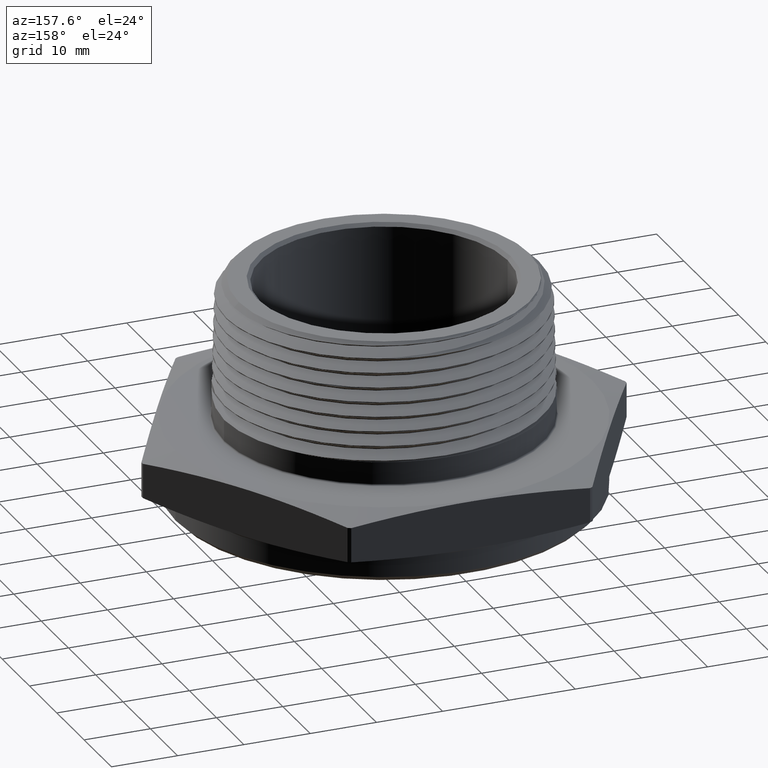
[diagram: clean part render]
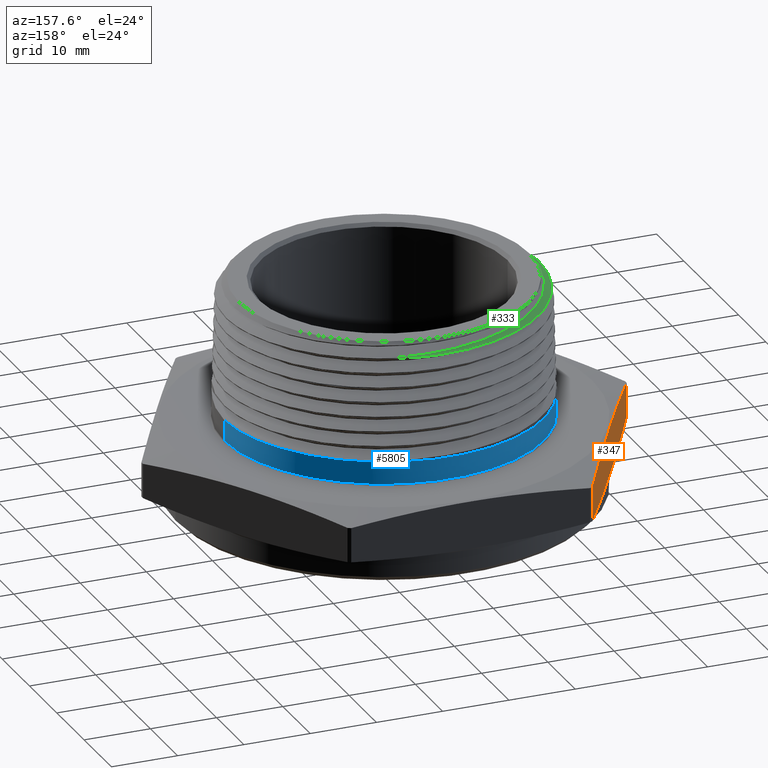
[diagram: same view with three faces highlighted in distinct colors, each labeled with its STEP entity id]
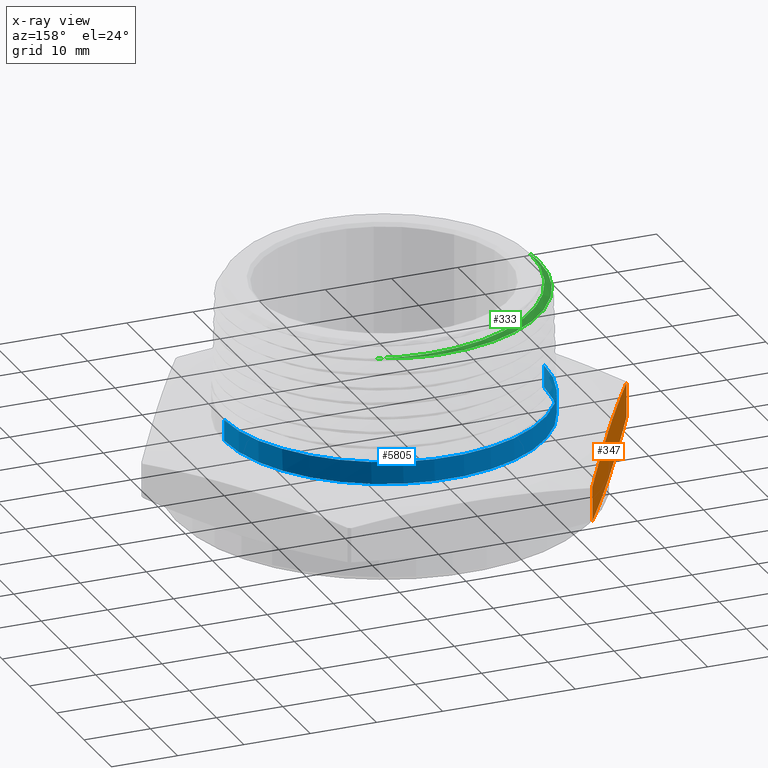
[diagram: x-ray of the same camera — body ghosted, the three highlighted faces saturated]
A machine part, auxiliary view with three faces highlighted in distinct colors.
The next image is the same camera in x-ray (body ghosted, the three faces saturated) — at least one of them is partly hidden behind the body in this view.
Their STEP definitions:

[orange] entity #347 — the highlighted planar face has unit normal (0.866, -0.5, 0).
#92 = EDGE_CURVE ( 'NONE', #686, #617, #7368, .T. ) ;
#174 = EDGE_CURVE ( 'NONE', #624, #622, #7398, .T. ) ;
#189 = EDGE_CURVE ( 'NONE', #617, #624, #424, .T. ) ;
#222 = EDGE_CURVE ( 'NONE', #622, #686, #449, .T. ) ;
#311 = AXIS2_PLACEMENT_3D ( 'NONE', #5261, #5265, #5266 ) ;
#347 = ADVANCED_FACE ( 'NONE', ( #524 ), #5263, .F. ) ;
#424 = LINE ( 'NONE', #3612, #426 ) ;
#426 = VECTOR ( 'NONE', #3613, 39.37007874015748100 ) ;
#449 = LINE ( 'NONE', #6458, #453 ) ;
#453 = VECTOR ( 'NONE', #6459, 39.37007874015748100 ) ;
#524 = FACE_OUTER_BOUND ( 'NONE', #5008, .T. ) ;
#617 = VERTEX_POINT ( 'NONE', #3508 ) ;
#622 = VERTEX_POINT ( 'NONE', #3512 ) ;
#624 = VERTEX_POINT ( 'NONE', #3513 ) ;
#686 = VERTEX_POINT ( 'NONE', #3574 ) ;
#3508 = CARTESIAN_POINT ( 'NONE',  ( -1.437337626038241800, 0.01045820407133122400, 0.04195349440467256700 ) ) ;
#3512 = CARTESIAN_POINT ( 'NONE',  ( -0.7277258834228548200, 1.239541795928669600, 0.2480465055953273400 ) ) ;
#3513 = CARTESIAN_POINT ( 'NONE',  ( -1.437337626038241800, 0.01045820407133122400, 0.2480465055953274000 ) ) ;
#3574 = CARTESIAN_POINT ( 'NONE',  ( -0.7277258834228547100, 1.239541795928669200, 0.04195349440467256700 ) ) ;
#3612 = CARTESIAN_POINT ( 'NONE',  ( -1.437337626038241600, 0.01045820407133122300, 4.452765956256800200E-017 ) ) ;
#3613 = DIRECTION ( 'NONE',  ( 1.254986547952384500E-016, 0.0000000000000000000, 1.000000000000000000 ) ) ;
#4763 = CARTESIAN_POINT ( 'NONE',  ( -1.319069002269010600, 0.2153054693808876300, 0.2705141470225283000 ) ) ;
#4764 = CARTESIAN_POINT ( 'NONE',  ( -1.378203314153626100, 0.1128818367261094600, 0.2604571565872934600 ) ) ;
#4833 = CARTESIAN_POINT ( 'NONE',  ( -1.437337626038241800, 0.01045820407133122400, 0.2480465055953274000 ) ) ;
#4834 = CARTESIAN_POINT ( 'NONE',  ( -1.200800378499779400, 0.4201527346904437900, 0.2842428284284243000 ) ) ;
#4835 = CARTESIAN_POINT ( 'NONE',  ( -1.082531754730547700, 0.6250000000000005600, 0.2915060403381749500 ) ) ;
#4836 = CARTESIAN_POINT ( 'NONE',  ( -0.9642631309613169900, 0.8298472653095566600, 0.2842428284284242400 ) ) ;
#4837 = CARTESIAN_POINT ( 'NONE',  ( -0.8459945071920862400, 1.034694530619113800, 0.2705141470225281800 ) ) ;
#4838 = CARTESIAN_POINT ( 'NONE',  ( -0.7868601953074708700, 1.137118163273891800, 0.2604571565872933500 ) ) ;
#4839 = CARTESIAN_POINT ( 'NONE',  ( -0.7277258834228548200, 1.239541795928669600, 0.2480465055953273400 ) ) ;
#4905 = ORIENTED_EDGE ( 'NONE', *, *, #92, .T. ) ;
#4906 = ORIENTED_EDGE ( 'NONE', *, *, #189, .T. ) ;
#4907 = ORIENTED_EDGE ( 'NONE', *, *, #174, .T. ) ;
#4908 = ORIENTED_EDGE ( 'NONE', *, *, #222, .T. ) ;
#5008 = EDGE_LOOP ( 'NONE', ( #4905, #4906, #4907, #4908 ) ) ;
#5261 = CARTESIAN_POINT ( 'NONE',  ( -0.7216878364870321600, 1.250000000000000000, 0.2899999999999999800 ) ) ;
#5263 = PLANE ( 'NONE',  #311 ) ;
#5265 = DIRECTION ( 'NONE',  ( 0.8660254037844386000, -0.5000000000000003300, 0.0000000000000000000 ) ) ;
#5266 = DIRECTION ( 'NONE',  ( 0.5000000000000002200, 0.8660254037844384900, 0.0000000000000000000 ) ) ;
#6458 = CARTESIAN_POINT ( 'NONE',  ( -0.7277258834228547100, 1.239541795928669200, -4.452765956256800200E-017 ) ) ;
#6459 = DIRECTION ( 'NONE',  ( -1.254986547952384500E-016, -0.0000000000000000000, -1.000000000000000000 ) ) ;
#7368 = B_SPLINE_CURVE_WITH_KNOTS ( 'NONE', 3,
 ( #7615, #7618, #7695, #7614, #7613, #7612, #7611, #7610, #7609 ),
 .UNSPECIFIED., .F., .F.,
 ( 4, 2, 1, 2, 4 ),
 ( 1.905845154215193700E-006, 0.009013974976369625000, 0.01802604410758503300, 0.02703811323880044400, 0.03605018237001584400 ),
 .UNSPECIFIED. ) ;
#7398 = B_SPLINE_CURVE_WITH_KNOTS ( 'NONE', 3,
 ( #4833, #4764, #4763, #4834, #4835, #4836, #4837, #4838, #4839 ),
 .UNSPECIFIED., .F., .F.,
 ( 4, 2, 1, 2, 4 ),
 ( 1.905845154219557400E-006, 0.009013974976369621600, 0.01802604410758503300, 0.02703811323880044000, 0.03605018237001585100 ),
 .UNSPECIFIED. ) ;
#7609 = CARTESIAN_POINT ( 'NONE',  ( -1.437337626038241800, 0.01045820407133122400, 0.04195349440467256700 ) ) ;
#7610 = CARTESIAN_POINT ( 'NONE',  ( -1.378203314153626700, 0.1128818367261093200, 0.02954284341270658000 ) ) ;
#7611 = CARTESIAN_POINT ( 'NONE',  ( -1.319069002269011000, 0.2153054693808875200, 0.01948585297747170200 ) ) ;
#7612 = CARTESIAN_POINT ( 'NONE',  ( -1.200800378499780300, 0.4201527346904441200, 0.005757171571575546600 ) ) ;
#7613 = CARTESIAN_POINT ( 'NONE',  ( -1.082531754730548400, 0.6250000000000005600, -0.001506040338175181200 ) ) ;
#7614 = CARTESIAN_POINT ( 'NONE',  ( -0.9642631309613175500, 0.8298472653095563300, 0.005757171571575505000 ) ) ;
#7615 = CARTESIAN_POINT ( 'NONE',  ( -0.7277258834228547100, 1.239541795928669200, 0.04195349440467256700 ) ) ;
#7618 = CARTESIAN_POINT ( 'NONE',  ( -0.7868601953074706400, 1.137118163273891100, 0.02954284341270648600 ) ) ;
#7695 = CARTESIAN_POINT ( 'NONE',  ( -0.8459945071920862400, 1.034694530619112900, 0.01948585297747160900 ) ) ;

[blue] entity #5805 — the highlighted cylindrical surface (partial cylindrical patch) has radius 24.13 mm, axis along (-0, -0, -1).
#51 = AXIS2_PLACEMENT_3D ( 'NONE', #733, #734, #730 ) ;
#136 = EDGE_CURVE ( 'NONE', #608, #627, #5163, .T. ) ;
#161 = EDGE_CURVE ( 'NONE', #627, #682, #391, .T. ) ;
#162 = EDGE_CURVE ( 'NONE', #694, #682, #393, .T. ) ;
#163 = EDGE_CURVE ( 'NONE', #613, #694, #386, .T. ) ;
#169 = EDGE_CURVE ( 'NONE', #613, #608, #7396, .T. ) ;
#257 = AXIS2_PLACEMENT_3D ( 'NONE', #6847, #6848, #6849 ) ;
#260 = AXIS2_PLACEMENT_3D ( 'NONE', #4589, #4590, #4591 ) ;
#386 = LINE ( 'NONE', #4588, #396 ) ;
#391 = LINE ( 'NONE', #4584, #394 ) ;
#393 = CIRCLE ( 'NONE', #260, 0.9499999999999999600 ) ;
#394 = VECTOR ( 'NONE', #4585, 39.37007874015748100 ) ;
#396 = VECTOR ( 'NONE', #4576, 39.37007874015748100 ) ;
#559 = FACE_OUTER_BOUND ( 'NONE', #5012, .T. ) ;
#560 = CYLINDRICAL_SURFACE ( 'NONE', #51, 0.9499999999999999600 ) ;
#608 = VERTEX_POINT ( 'NONE', #3500 ) ;
#613 = VERTEX_POINT ( 'NONE', #3505 ) ;
#627 = VERTEX_POINT ( 'NONE', #3515 ) ;
#682 = VERTEX_POINT ( 'NONE', #3570 ) ;
#694 = VERTEX_POINT ( 'NONE', #3582 ) ;
#730 = DIRECTION ( 'NONE',  ( -1.000000000000000000, 0.0000000000000000000, 0.0000000000000000000 ) ) ;
#733 = CARTESIAN_POINT ( 'NONE',  ( 0.0000000000000000000, 0.0000000000000000000, 1.120000000000000100 ) ) ;
#734 = DIRECTION ( 'NONE',  ( -0.0000000000000000000, -0.0000000000000000000, -1.000000000000000000 ) ) ;
#3500 = CARTESIAN_POINT ( 'NONE',  ( 0.8103408575735795400, 0.4958303082173806700, 0.4322118300599313000 ) ) ;
#3505 = CARTESIAN_POINT ( 'NONE',  ( 0.9499999999999999600, 1.396097351027982000E-015, 0.4247256000610708000 ) ) ;
#3515 = CARTESIAN_POINT ( 'NONE',  ( -0.9499999999999999600, 0.0000000000000000000, 0.4322118300599065400 ) ) ;
#3570 = CARTESIAN_POINT ( 'NONE',  ( -0.9499999999999999600, 0.0000000000000000000, 0.2999999999999999300 ) ) ;
#3582 = CARTESIAN_POINT ( 'NONE',  ( 0.9499999999999999600, 1.163414459189985400E-016, 0.2999999999999999300 ) ) ;
#4576 = DIRECTION ( 'NONE',  ( -0.0000000000000000000, -0.0000000000000000000, -1.000000000000000000 ) ) ;
#4584 = CARTESIAN_POINT ( 'NONE',  ( -0.9499999999999999600, 0.0000000000000000000, 1.120000000000000100 ) ) ;
#4585 = DIRECTION ( 'NONE',  ( -0.0000000000000000000, -0.0000000000000000000, -1.000000000000000000 ) ) ;
#4588 = CARTESIAN_POINT ( 'NONE',  ( 0.9499999999999999600, 1.163414459189985400E-016, 1.120000000000000100 ) ) ;
#4589 = CARTESIAN_POINT ( 'NONE',  ( 0.0000000000000000000, 0.0000000000000000000, 0.2999999999999999300 ) ) ;
#4590 = DIRECTION ( 'NONE',  ( -0.0000000000000000000, 0.0000000000000000000, 1.000000000000000000 ) ) ;
#4591 = DIRECTION ( 'NONE',  ( 1.000000000000000000, 0.0000000000000000000, 0.0000000000000000000 ) ) ;
#4743 = CARTESIAN_POINT ( 'NONE',  ( 0.9499999999999998400, 0.04376044649142504100, 0.4253536803664314500 ) ) ;
#4745 = CARTESIAN_POINT ( 'NONE',  ( 0.9469906977881996600, 0.08726416962842077600, 0.4259752671625905400 ) ) ;
#4749 = CARTESIAN_POINT ( 'NONE',  ( 0.9499999999999999600, 1.396097351027982000E-015, 0.4247256000610708000 ) ) ;
#4750 = CARTESIAN_POINT ( 'NONE',  ( 0.9379930416243615900, 0.1521369715547751000, 0.4269172804552975900 ) ) ;
#4751 = CARTESIAN_POINT ( 'NONE',  ( 0.9342316562770640600, 0.1737374126753782300, 0.4272328627869794200 ) ) ;
#4752 = CARTESIAN_POINT ( 'NONE',  ( 0.9252972745385856800, 0.2163294475673309100, 0.4278567693194805800 ) ) ;
#4753 = CARTESIAN_POINT ( 'NONE',  ( 0.9201196890645995100, 0.2373750278955432400, 0.4281665073907365800 ) ) ;
#4754 = CARTESIAN_POINT ( 'NONE',  ( 0.9024983694014645500, 0.2997753784397215200, 0.4290960269641788700 ) ) ;
#4755 = CARTESIAN_POINT ( 'NONE',  ( 0.8879755952850391100, 0.3403970977156611200, 0.4297173064405072100 ) ) ;
#4756 = CARTESIAN_POINT ( 'NONE',  ( 0.8620210226929075900, 0.3998593089128226800, 0.4306468554580703500 ) ) ;
#4757 = CARTESIAN_POINT ( 'NONE',  ( 0.8526720590465005600, 0.4194341386096995300, 0.4309569746216282400 ) ) ;
#4758 = CARTESIAN_POINT ( 'NONE',  ( 0.8325481777062421200, 0.4580809630489738900, 0.4315819216731792100 ) ) ;
#4759 = CARTESIAN_POINT ( 'NONE',  ( 0.8217607232632152500, 0.4771666976976877100, 0.4318970241964945100 ) ) ;
#4760 = CARTESIAN_POINT ( 'NONE',  ( 0.8103408575735795400, 0.4958303082173806700, 0.4322118300599313000 ) ) ;
#5012 = EDGE_LOOP ( 'NONE', ( #7458, #7486, #7437, #7483, #7457 ) ) ;
#5163 = CIRCLE ( 'NONE', #257, 0.9499999999999999600 ) ;
#5805 = ADVANCED_FACE ( 'NONE', ( #559 ), #560, .T. ) ;
#6847 = CARTESIAN_POINT ( 'NONE',  ( 0.0000000000000000000, 0.0000000000000000000, 0.4322118300599065400 ) ) ;
#6848 = DIRECTION ( 'NONE',  ( 0.0000000000000000000, 0.0000000000000000000, 1.000000000000000000 ) ) ;
#6849 = DIRECTION ( 'NONE',  ( -1.000000000000000000, 0.0000000000000000000, 0.0000000000000000000 ) ) ;
#7396 = B_SPLINE_CURVE_WITH_KNOTS ( 'NONE', 3,
 ( #4749, #4743, #4745, #4750, #4751, #4752, #4753, #4754, #4755, #4756, #4757, #4758, #4759, #4760 ),
 .UNSPECIFIED., .F., .F.,
 ( 4, 2, 2, 2, 2, 2, 4 ),
 ( 0.0000000000000000000, 0.003322813731990465200, 0.004984220597985697600, 0.006645627463980930400, 0.009968441195971395100, 0.01162984806196663000, 0.01329125492796186600 ),
 .UNSPECIFIED. ) ;
#7437 = ORIENTED_EDGE ( 'NONE', *, *, #162, .T. ) ;
#7457 = ORIENTED_EDGE ( 'NONE', *, *, #136, .F. ) ;
#7458 = ORIENTED_EDGE ( 'NONE', *, *, #169, .F. ) ;
#7483 = ORIENTED_EDGE ( 'NONE', *, *, #161, .F. ) ;
#7486 = ORIENTED_EDGE ( 'NONE', *, *, #163, .T. ) ;

[green] entity #333 — the highlighted conical surface has half-angle 45 deg.
#165 = EDGE_CURVE ( 'NONE', #638, #688, #397, .T. ) ;
#201 = EDGE_CURVE ( 'NONE', #638, #658, #7402, .T. ) ;
#202 = EDGE_CURVE ( 'NONE', #656, #688, #7403, .T. ) ;
#204 = EDGE_CURVE ( 'NONE', #656, #658, #438, .T. ) ;
#261 = AXIS2_PLACEMENT_3D ( 'NONE', #4618, #4619, #4620 ) ;
#297 = AXIS2_PLACEMENT_3D ( 'NONE', #5217, #5218, #5216 ) ;
#333 = ADVANCED_FACE ( 'NONE', ( #496 ), #501, .T. ) ;
#397 = CIRCLE ( 'NONE', #261, 0.9341699455794438800 ) ;
#437 = VECTOR ( 'NONE', #3833, 39.37007874015748100 ) ;
#438 = LINE ( 'NONE', #3769, #437 ) ;
#496 = FACE_OUTER_BOUND ( 'NONE', #5035, .T. ) ;
#501 = CONICAL_SURFACE ( 'NONE', #297, 0.9413905520356563600, 0.7853981633974536100 ) ;
#638 = VERTEX_POINT ( 'NONE', #3526 ) ;
#656 = VERTEX_POINT ( 'NONE', #3544 ) ;
#658 = VERTEX_POINT ( 'NONE', #3546 ) ;
#688 = VERTEX_POINT ( 'NONE', #3576 ) ;
#3526 = CARTESIAN_POINT ( 'NONE',  ( 0.06412285604429575300, 0.9319666016315304400, 1.049080054420555900 ) ) ;
#3544 = CARTESIAN_POINT ( 'NONE',  ( -0.8695252292204457300, -2.223801020038238600E-014, 1.113724770779553700 ) ) ;
#3546 = CARTESIAN_POINT ( 'NONE',  ( -0.9195725450993488300, -6.648933538573983800E-013, 1.063677454900651600 ) ) ;
#3576 = CARTESIAN_POINT ( 'NONE',  ( 0.3919304713871948900, 0.8479764105339914200, 1.049080054420555900 ) ) ;
#3692 = CARTESIAN_POINT ( 'NONE',  ( -0.8702287310720154800, 0.01896142594230873800, 1.113021268927983900 ) ) ;
#3697 = CARTESIAN_POINT ( 'NONE',  ( 0.06412285604429575300, 0.9319666016315304400, 1.049080054420555900 ) ) ;
#3698 = CARTESIAN_POINT ( 'NONE',  ( 0.03225392441384350400, 0.9338548061650919800, 1.049383835712428100 ) ) ;
#3703 = CARTESIAN_POINT ( 'NONE',  ( 0.0004299980785762104400, 0.9341055294485677300, 1.049686070086224900 ) ) ;
#3704 = CARTESIAN_POINT ( 'NONE',  ( -0.06312856496220541100, 0.9313606513911192300, 1.050294392875420300 ) ) ;
#3705 = CARTESIAN_POINT ( 'NONE',  ( -0.09500041727161436000, 0.9283427023268147100, 1.050600031207184100 ) ) ;
#3706 = CARTESIAN_POINT ( 'NONE',  ( -0.1893046849084506800, 0.9145180165976353200, 1.051508450756872800 ) ) ;
#3707 = CARTESIAN_POINT ( 'NONE',  ( -0.2503615957706009600, 0.8990661342829804300, 1.052109770900610000 ) ) ;
#3708 = CARTESIAN_POINT ( 'NONE',  ( -0.3392846622056615000, 0.8667301504882573000, 1.053013171701749900 ) ) ;
#3709 = CARTESIAN_POINT ( 'NONE',  ( -0.3684781654356548100, 0.8544120989832632000, 1.053315979981231700 ) ) ;
#3710 = CARTESIAN_POINT ( 'NONE',  ( -0.4259361299917173700, 0.8265803772252886500, 1.053928852525846800 ) ) ;
#3711 = CARTESIAN_POINT ( 'NONE',  ( -0.4537118802372863100, 0.8113042170211661700, 1.054232147768926500 ) ) ;
#3712 = CARTESIAN_POINT ( 'NONE',  ( -0.5342147537260457700, 0.7615688757757103100, 1.055137278717786800 ) ) ;
#3713 = CARTESIAN_POINT ( 'NONE',  ( -0.5841716199508355500, 0.7232234317426149400, 1.055741105347443300 ) ) ;
#3714 = CARTESIAN_POINT ( 'NONE',  ( -0.6418754277214241400, 0.6686625708524680500, 1.056502215074552900 ) ) ;
#3715 = CARTESIAN_POINT ( 'NONE',  ( -0.6532081213986700200, 0.6573809528702485600, 1.056655542532580300 ) ) ;
#3716 = CARTESIAN_POINT ( 'NONE',  ( -0.6751782574178290000, 0.6343479165951614300, 1.056961880606274600 ) ) ;
#3717 = CARTESIAN_POINT ( 'NONE',  ( -0.6858236535453325900, 0.6225933332269373300, 1.057114746198645200 ) ) ;
#3718 = CARTESIAN_POINT ( 'NONE',  ( -0.7167609536730028500, 0.5866294854242899400, 1.057571717954552500 ) ) ;
#3719 = CARTESIAN_POINT ( 'NONE',  ( -0.7360568388609936000, 0.5617221299455841300, 1.057873825172287000 ) ) ;
#3720 = CARTESIAN_POINT ( 'NONE',  ( -0.7720251337525010400, 0.5100687399421425200, 1.058478368598030600 ) ) ;
#3721 = CARTESIAN_POINT ( 'NONE',  ( -0.7886961704476801400, 0.4833217632034674800, 1.058782503719128700 ) ) ;
#3722 = CARTESIAN_POINT ( 'NONE',  ( -0.8193690243514195600, 0.4279570950216493000, 1.059393166469584800 ) ) ;
#3723 = CARTESIAN_POINT ( 'NONE',  ( -0.8334373757695212600, 0.3991646584392764500, 1.059700774269809200 ) ) ;
#3724 = CARTESIAN_POINT ( 'NONE',  ( -0.8707485859072264800, 0.3115706085001861400, 1.060617409083216100 ) ) ;
#3725 = CARTESIAN_POINT ( 'NONE',  ( -0.8893233600932032300, 0.2514285516881756300, 1.061223455494462400 ) ) ;
#3726 = CARTESIAN_POINT ( 'NONE',  ( -0.9078971729377050000, 0.1586410917760948900, 1.062136857672454800 ) ) ;
#3727 = CARTESIAN_POINT ( 'NONE',  ( -0.9125290914248257400, 0.1272468231605909900, 1.062444722201894900 ) ) ;
#3728 = CARTESIAN_POINT ( 'NONE',  ( -0.9185353882868927400, 0.06369169521452514000, 1.063062435155518200 ) ) ;
#3729 = CARTESIAN_POINT ( 'NONE',  ( -0.9198811304627533300, 0.03186856585699508700, 1.063368869537269200 ) ) ;
#3730 = CARTESIAN_POINT ( 'NONE',  ( -0.9195725450993488300, -6.648933538573983800E-013, 1.063677454900651600 ) ) ;
#3731 = CARTESIAN_POINT ( 'NONE',  ( -0.8695252292204457300, -2.223801020038238600E-014, 1.113724770779553700 ) ) ;
#3733 = CARTESIAN_POINT ( 'NONE',  ( -0.8703113045011845500, 0.03800124135306572800, 1.112314152629815700 ) ) ;
#3734 = CARTESIAN_POINT ( 'NONE',  ( -0.8692435190046772200, 0.07578039011315758400, 1.110913853778355600 ) ) ;
#3735 = CARTESIAN_POINT ( 'NONE',  ( -0.8680966476933367200, 0.09457358390323703000, 1.110218651768982300 ) ) ;
#3736 = CARTESIAN_POINT ( 'NONE',  ( -0.8628552719965526500, 0.1506698649757651200, 1.108143287326921000 ) ) ;
#3737 = CARTESIAN_POINT ( 'NONE',  ( -0.8569738223628052800, 0.1876915790377734500, 1.106766703105616800 ) ) ;
#3738 = CARTESIAN_POINT ( 'NONE',  ( -0.8445879843388443000, 0.2426624334529446400, 1.104693458240525400 ) ) ;
#3739 = CARTESIAN_POINT ( 'NONE',  ( -0.8398617967625671100, 0.2608919283783424600, 1.104002804250379800 ) ) ;
#3740 = CARTESIAN_POINT ( 'NONE',  ( -0.8291938982361053400, 0.2971593697190270100, 1.102619880617775200 ) ) ;
#3741 = CARTESIAN_POINT ( 'NONE',  ( -0.8232275766015819700, 0.3152581458492501600, 1.101925226163392700 ) ) ;
#3742 = CARTESIAN_POINT ( 'NONE',  ( -0.8037163955979617100, 0.3686011746109144600, 1.099850355001417400 ) ) ;
#3743 = CARTESIAN_POINT ( 'NONE',  ( -0.7885516520553811400, 0.4030097650465150900, 1.098475223478244900 ) ) ;
#3744 = CARTESIAN_POINT ( 'NONE',  ( -0.7540237274700541900, 0.4695825879932550300, 1.095750470410670000 ) ) ;
#3745 = CARTESIAN_POINT ( 'NONE',  ( -0.7346674191882609500, 0.5017501644004160900, 1.094392842785469200 ) ) ;
#3746 = CARTESIAN_POINT ( 'NONE',  ( -0.7024560649423194900, 0.5483017076953079500, 1.092338283697218000 ) ) ;
#3747 = CARTESIAN_POINT ( 'NONE',  ( -0.6911517400134561400, 0.5635764813680344000, 1.091650487201767600 ) ) ;
#3748 = CARTESIAN_POINT ( 'NONE',  ( -0.6676112897950529100, 0.5933366953184168200, 1.090280917992993100 ) ) ;
#3749 = CARTESIAN_POINT ( 'NONE',  ( -0.6554242810930138700, 0.6077664269922628000, 1.089601779470241300 ) ) ;
#3750 = CARTESIAN_POINT ( 'NONE',  ( -0.5924677602759994600, 0.6777296493248588000, 1.086214042508478100 ) ) ;
#3751 = CARTESIAN_POINT ( 'NONE',  ( -0.5357183458055706500, 0.7267990093188143600, 1.083543874812460200 ) ) ;
#3752 = CARTESIAN_POINT ( 'NONE',  ( -0.4408639506297927800, 0.7898776091748880300, 1.079464792181861900 ) ) ;
#3753 = CARTESIAN_POINT ( 'NONE',  ( -0.4081275715947866300, 0.8087629104434093100, 1.078120773989589300 ) ) ;
#3754 = CARTESIAN_POINT ( 'NONE',  ( -0.3409195275095428500, 0.8421807292809037100, 1.075457148748737400 ) ) ;
#3755 = CARTESIAN_POINT ( 'NONE',  ( -0.3063858057177433800, 0.8567670067163851700, 1.074123688757289800 ) ) ;
#3756 = CARTESIAN_POINT ( 'NONE',  ( -0.2531815485831094800, 0.8754420865150867000, 1.072126015902606300 ) ) ;
#3757 = CARTESIAN_POINT ( 'NONE',  ( -0.2352120705921474900, 0.8811312998240582500, 1.071460805460235900 ) ) ;
#3758 = CARTESIAN_POINT ( 'NONE',  ( -0.1987963827525914300, 0.8914210413378537100, 1.070126829593636100 ) ) ;
#3759 = CARTESIAN_POINT ( 'NONE',  ( -0.1803082492067807900, 0.8960276784394172200, 1.069455969579285100 ) ) ;
#3760 = CARTESIAN_POINT ( 'NONE',  ( -0.1248635061409684600, 0.9080323185672054500, 1.067452508295474400 ) ) ;
#3761 = CARTESIAN_POINT ( 'NONE',  ( -0.08771273885903198300, 0.9136844003416748600, 1.066129864553098500 ) ) ;
#3762 = CARTESIAN_POINT ( 'NONE',  ( -0.01304656027721025300, 0.9204162906224231400, 1.063503841739759500 ) ) ;
#3763 = CARTESIAN_POINT ( 'NONE',  ( 0.02446770370276161300, 0.9215059787916231000, 1.062190262411755400 ) ) ;
#3764 = CARTESIAN_POINT ( 'NONE',  ( 0.09986388959039252400, 0.9190603288706967700, 1.059548864739807900 ) ) ;
#3765 = CARTESIAN_POINT ( 'NONE',  ( 0.1378823182228413600, 0.9154666700046902900, 1.058224645346487200 ) ) ;
#3766 = CARTESIAN_POINT ( 'NONE',  ( 0.2495910799289775000, 0.8979659221325054800, 1.054291927088794000 ) ) ;
#3767 = CARTESIAN_POINT ( 'NONE',  ( 0.3218740452724514500, 0.8774592599048786100, 1.051709648040686700 ) ) ;
#3768 = CARTESIAN_POINT ( 'NONE',  ( 0.3919304713871948900, 0.8479764105339914200, 1.049080054420555900 ) ) ;
#3769 = CARTESIAN_POINT ( 'NONE',  ( -0.9413905520356563600, 0.0000000000000000000, 1.041859447964343300 ) ) ;
#3833 = DIRECTION ( 'NONE',  ( -0.7071067811865512400, 0.0000000000000000000, -0.7071067811865438000 ) ) ;
#4618 = CARTESIAN_POINT ( 'NONE',  ( 0.0000000000000000000, 0.0000000000000000000, 1.049080054420555900 ) ) ;
#4619 = DIRECTION ( 'NONE',  ( -0.0000000000000000000, -0.0000000000000000000, -1.000000000000000000 ) ) ;
#4620 = DIRECTION ( 'NONE',  ( -1.000000000000000000, 0.0000000000000000000, 0.0000000000000000000 ) ) ;
#5035 = EDGE_LOOP ( 'NONE', ( #7429, #7436, #7505, #7439 ) ) ;
#5216 = DIRECTION ( 'NONE',  ( -1.000000000000000000, 0.0000000000000000000, 0.0000000000000000000 ) ) ;
#5217 = CARTESIAN_POINT ( 'NONE',  ( 0.0000000000000000000, 0.0000000000000000000, 1.041859447964343300 ) ) ;
#5218 = DIRECTION ( 'NONE',  ( -0.0000000000000000000, -0.0000000000000000000, -1.000000000000000000 ) ) ;
#7402 = B_SPLINE_CURVE_WITH_KNOTS ( 'NONE', 3,
 ( #3697, #3698, #3703, #3704, #3705, #3706, #3707, #3708, #3709, #3710, #3711, #3712, #3713, #3714, #3715, #3716, #3717, #3718, #3719, #3720, #3721, #3722, #3723, #3724, #3725, #3726, #3727, #3728, #3729, #3730 ),
 .UNSPECIFIED., .F., .F.,
 ( 4, 2, 2, 2, 2, 2, 2, 2, 2, 2, 2, 2, 2, 2, 4 ),
 ( 0.0000000000000000000, 0.002423651544956478600, 0.004847303089912957100, 0.009694606179825919500, 0.01211825772478240100, 0.01454190926973888100, 0.01938921235965183900, 0.02060103813213007300, 0.02181286390460830700, 0.02423651544956478100, 0.02666016699452126000, 0.02908381853947773100, 0.03393112162939068700, 0.03635477317434716900, 0.03877842471930364300 ),
 .UNSPECIFIED. ) ;
#7403 = B_SPLINE_CURVE_WITH_KNOTS ( 'NONE', 3,
 ( #3731, #3692, #3733, #3734, #3735, #3736, #3737, #3738, #3739, #3740, #3741, #3742, #3743, #3744, #3745, #3746, #3747, #3748, #3749, #3750, #3751, #3752, #3753, #3754, #3755, #3756, #3757, #3758, #3759, #3760, #3761, #3762, #3763, #3764, #3765, #3766, #3767, #3768 ),
 .UNSPECIFIED., .F., .F.,
 ( 4, 2, 2, 2, 2, 2, 2, 2, 2, 2, 2, 2, 2, 2, 2, 2, 2, 2, 4 ),
 ( 0.003563377235340352200, 0.005006831893889953200, 0.006450286552439553700, 0.009337195869538754800, 0.01078065052808835400, 0.01222410518663795400, 0.01511101450373715700, 0.01799792382083635600, 0.01944137847938596000, 0.02088483313793556100, 0.02665865177213395900, 0.02954556108923315700, 0.03243247040633235500, 0.03387592506488196200, 0.03531937972343155600, 0.03820628904053075700, 0.04109319835762995800, 0.04398010767472915900, 0.04975392630892756800 ),
 .UNSPECIFIED. ) ;
#7429 = ORIENTED_EDGE ( 'NONE', *, *, #204, .F. ) ;
#7436 = ORIENTED_EDGE ( 'NONE', *, *, #202, .T. ) ;
#7439 = ORIENTED_EDGE ( 'NONE', *, *, #201, .T. ) ;
#7505 = ORIENTED_EDGE ( 'NONE', *, *, #165, .F. ) ;